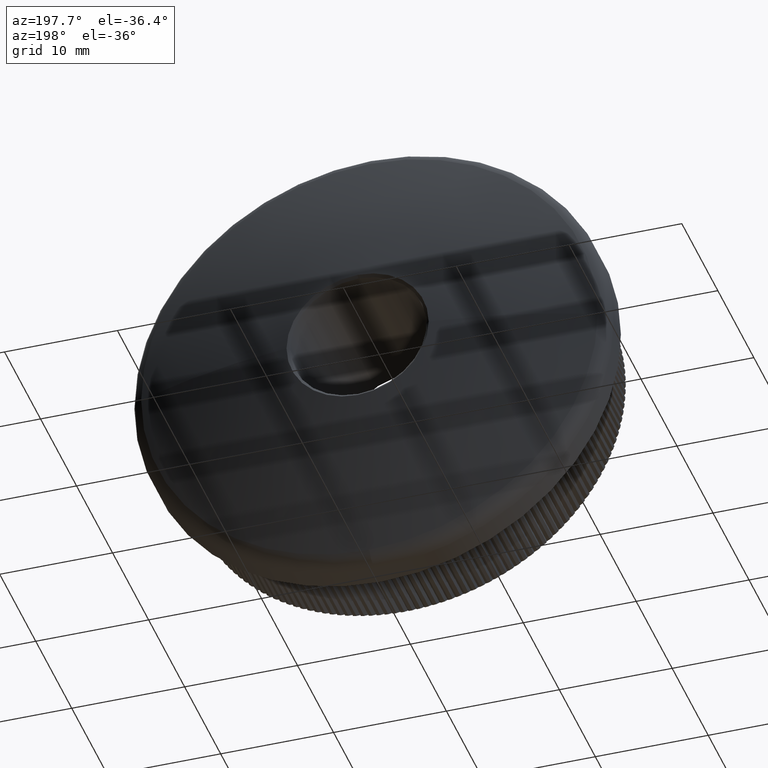
[diagram: clean part render]
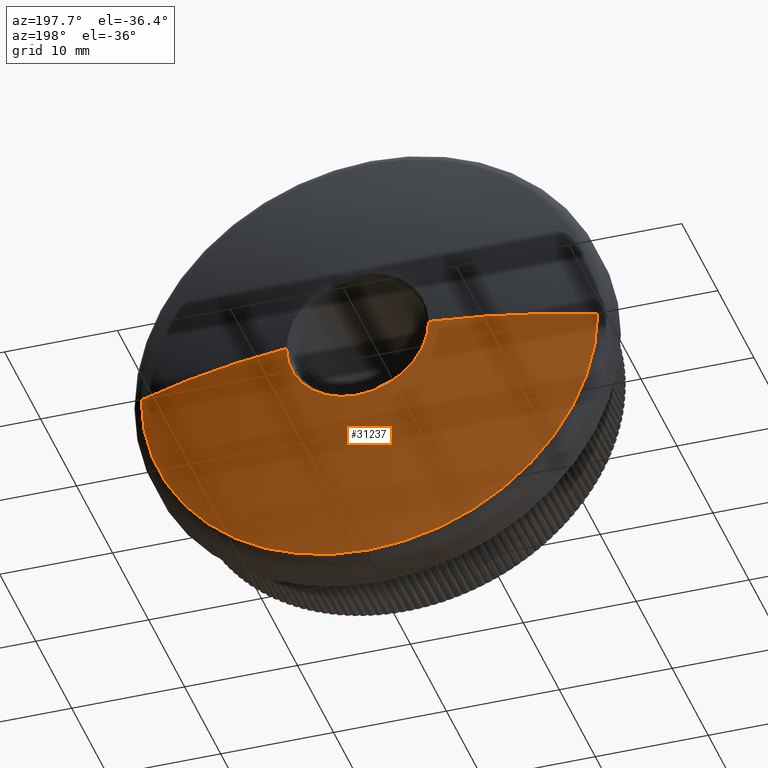
[diagram: same view with one face highlighted and labeled with its STEP entity id]
A machine part, auxiliary view. The second image highlights one B-rep face of the part: STEP entity #31237.
In plain terms, the highlighted spherical surface has radius 58.18 mm.
Its self-contained STEP definition (entity closure, byte-faithful):
#1622 = DIRECTION ( 'NONE',  ( 1.224646799147353200E-016, -0.0000000000000000000, 1.000000000000000000 ) ) ;
#2232 = DIRECTION ( 'NONE',  ( 0.0000000000000000000, 1.000000000000000000, 0.0000000000000000000 ) ) ;
#2361 = EDGE_CURVE ( 'NONE', #7732, #6958, #26499, .T. ) ;
#2564 = AXIS2_PLACEMENT_3D ( 'NONE', #7106, #2232, #31623 ) ;
#3672 = DIRECTION ( 'NONE',  ( 1.000000000000000000, 0.0000000000000000000, 0.0000000000000000000 ) ) ;
#4072 = AXIS2_PLACEMENT_3D ( 'NONE', #11122, #16037, #3672 ) ;
#5072 = CIRCLE ( 'NONE', #12133, 6.298057098432273000 ) ;
#6280 = CARTESIAN_POINT ( 'NONE',  ( -20.22134791813689200, 11.37281375303809700, 2.476400900239134100E-015 ) ) ;
#6473 = CARTESIAN_POINT ( 'NONE',  ( -6.298057098432273000, 14.65810920824510400, 1.623845223441685600E-015 ) ) ;
#6958 = VERTEX_POINT ( 'NONE', #32168 ) ;
#7032 = CIRCLE ( 'NONE', #2564, 20.22134791813691000 ) ;
#7079 = DIRECTION ( 'NONE',  ( 0.0000000000000000000, 0.0000000000000000000, -1.000000000000000000 ) ) ;
#7106 = CARTESIAN_POINT ( 'NONE',  ( 0.0000000000000000000, 11.37281375303810000, 0.0000000000000000000 ) ) ;
#7732 = VERTEX_POINT ( 'NONE', #6473 ) ;
#8065 = EDGE_CURVE ( 'NONE', #15467, #13052, #27406, .T. ) ;
#8980 = DIRECTION ( 'NONE',  ( -1.000000000000000000, 0.0000000000000000000, 0.0000000000000000000 ) ) ;
#10326 = AXIS2_PLACEMENT_3D ( 'NONE', #28571, #28976, #8980 ) ;
#11122 = CARTESIAN_POINT ( 'NONE',  ( 0.0000000000000000000, -43.18000000000007100, 0.0000000000000000000 ) ) ;
#11257 = ORIENTED_EDGE ( 'NONE', *, *, #15469, .T. ) ;
#11885 = EDGE_CURVE ( 'NONE', #6958, #13414, #5072, .T. ) ;
#11904 = CARTESIAN_POINT ( 'NONE',  ( 0.0000000000000000000, -43.18000000000007100, 0.0000000000000000000 ) ) ;
#12051 = DIRECTION ( 'NONE',  ( -0.0000000000000000000, -1.000000000000000000, -0.0000000000000000000 ) ) ;
#12133 = AXIS2_PLACEMENT_3D ( 'NONE', #21828, #12051, #7079 ) ;
#12483 = VERTEX_POINT ( 'NONE', #6280 ) ;
#13052 = VERTEX_POINT ( 'NONE', #16336 ) ;
#13414 = VERTEX_POINT ( 'NONE', #23483 ) ;
#15238 = DIRECTION ( 'NONE',  ( 0.0000000000000000000, 1.000000000000000000, 0.0000000000000000000 ) ) ;
#15467 = VERTEX_POINT ( 'NONE', #26184 ) ;
#15469 = EDGE_CURVE ( 'NONE', #13414, #15467, #21337, .T. ) ;
#15655 = CARTESIAN_POINT ( 'NONE',  ( 0.0000000000000000000, 11.37281375303810000, 0.0000000000000000000 ) ) ;
#16037 = DIRECTION ( 'NONE',  ( 0.0000000000000000000, 0.0000000000000000000, 1.000000000000000000 ) ) ;
#16336 = CARTESIAN_POINT ( 'NONE',  ( 0.0000000000000000000, 11.37281375303810000, -20.22134791813691000 ) ) ;
#17154 = CIRCLE ( 'NONE', #23713, 58.18000000000007100 ) ;
#17222 = DIRECTION ( 'NONE',  ( -0.0000000000000000000, -1.000000000000000000, -0.0000000000000000000 ) ) ;
#18030 = AXIS2_PLACEMENT_3D ( 'NONE', #32110, #17222, #29711 ) ;
#19469 = EDGE_CURVE ( 'NONE', #7732, #12483, #17154, .T. ) ;
#20007 = AXIS2_PLACEMENT_3D ( 'NONE', #15655, #15238, #25204 ) ;
#20554 = SPHERICAL_SURFACE ( 'NONE', #4072, 58.18000000000007100 ) ;
#21305 = ORIENTED_EDGE ( 'NONE', *, *, #11885, .T. ) ;
#21337 = CIRCLE ( 'NONE', #10326, 58.18000000000007100 ) ;
#21828 = CARTESIAN_POINT ( 'NONE',  ( 0.0000000000000000000, 14.65810920824510400, 0.0000000000000000000 ) ) ;
#23483 = CARTESIAN_POINT ( 'NONE',  ( 6.298057098432273000, 14.65810920824510400, 0.0000000000000000000 ) ) ;
#23713 = AXIS2_PLACEMENT_3D ( 'NONE', #11904, #1622, #24201 ) ;
#24201 = DIRECTION ( 'NONE',  ( 1.000000000000000000, 0.0000000000000000000, -1.224646799147353500E-016 ) ) ;
#24242 = EDGE_LOOP ( 'NONE', ( #30165, #31656, #21305, #11257, #32102, #30875 ) ) ;
#25204 = DIRECTION ( 'NONE',  ( 0.0000000000000000000, 0.0000000000000000000, -1.000000000000000000 ) ) ;
#26006 = FACE_OUTER_BOUND ( 'NONE', #24242, .T. ) ;
#26184 = CARTESIAN_POINT ( 'NONE',  ( 20.22134791813689200, 11.37281375303809700, 0.0000000000000000000 ) ) ;
#26499 = CIRCLE ( 'NONE', #18030, 6.298057098432273000 ) ;
#27406 = CIRCLE ( 'NONE', #20007, 20.22134791813691000 ) ;
#27645 = EDGE_CURVE ( 'NONE', #13052, #12483, #7032, .T. ) ;
#28571 = CARTESIAN_POINT ( 'NONE',  ( 0.0000000000000000000, -43.18000000000007100, 0.0000000000000000000 ) ) ;
#28976 = DIRECTION ( 'NONE',  ( 0.0000000000000000000, 0.0000000000000000000, -1.000000000000000000 ) ) ;
#29711 = DIRECTION ( 'NONE',  ( 0.0000000000000000000, 0.0000000000000000000, -1.000000000000000000 ) ) ;
#30165 = ORIENTED_EDGE ( 'NONE', *, *, #19469, .F. ) ;
#30875 = ORIENTED_EDGE ( 'NONE', *, *, #27645, .T. ) ;
#31237 = ADVANCED_FACE ( 'NONE', ( #26006 ), #20554, .T. ) ;
#31623 = DIRECTION ( 'NONE',  ( 0.0000000000000000000, 0.0000000000000000000, -1.000000000000000000 ) ) ;
#31656 = ORIENTED_EDGE ( 'NONE', *, *, #2361, .T. ) ;
#32102 = ORIENTED_EDGE ( 'NONE', *, *, #8065, .T. ) ;
#32110 = CARTESIAN_POINT ( 'NONE',  ( 0.0000000000000000000, 14.65810920824510400, 0.0000000000000000000 ) ) ;
#32168 = CARTESIAN_POINT ( 'NONE',  ( 7.712895466442348500E-016, 14.65810920824510400, -6.298057098432272100 ) ) ;